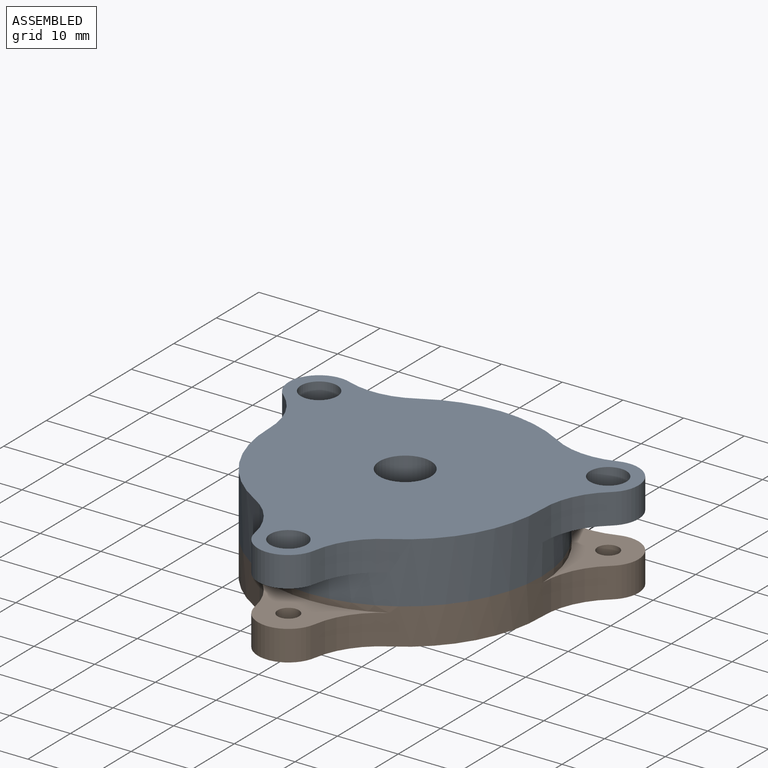
[diagram: assembled view]
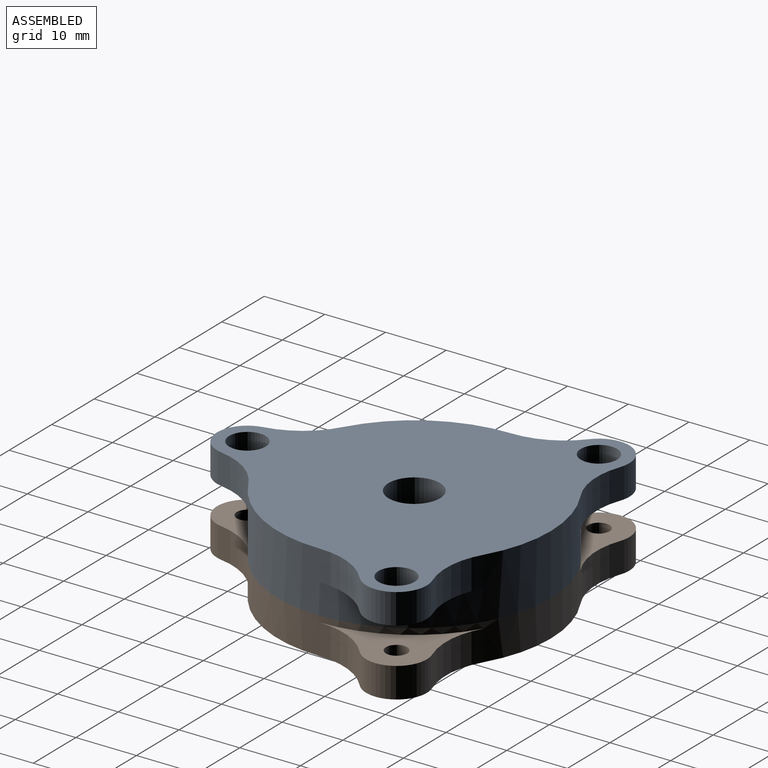
[diagram: assembled view, second angle]
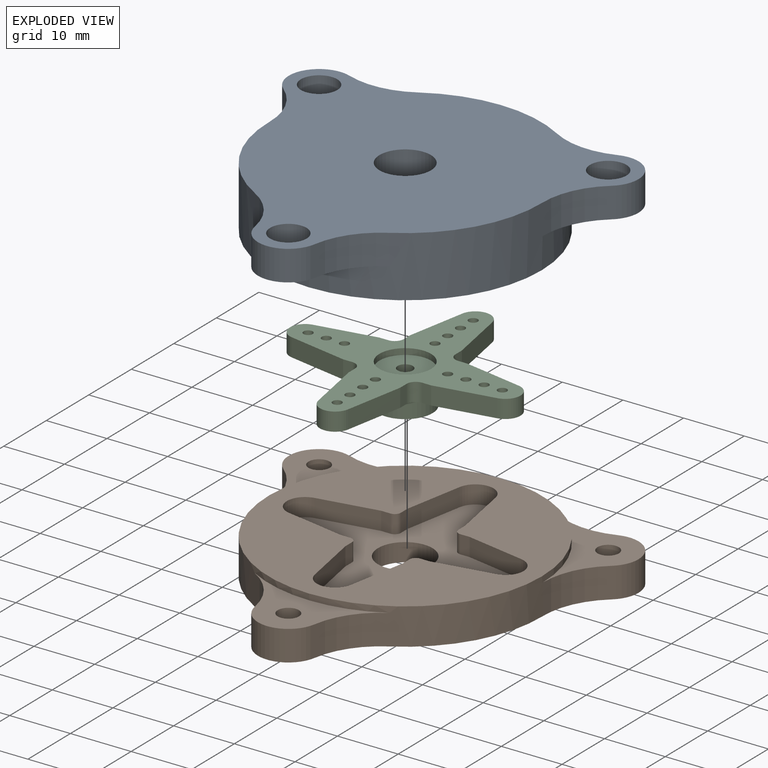
[diagram: exploded view]
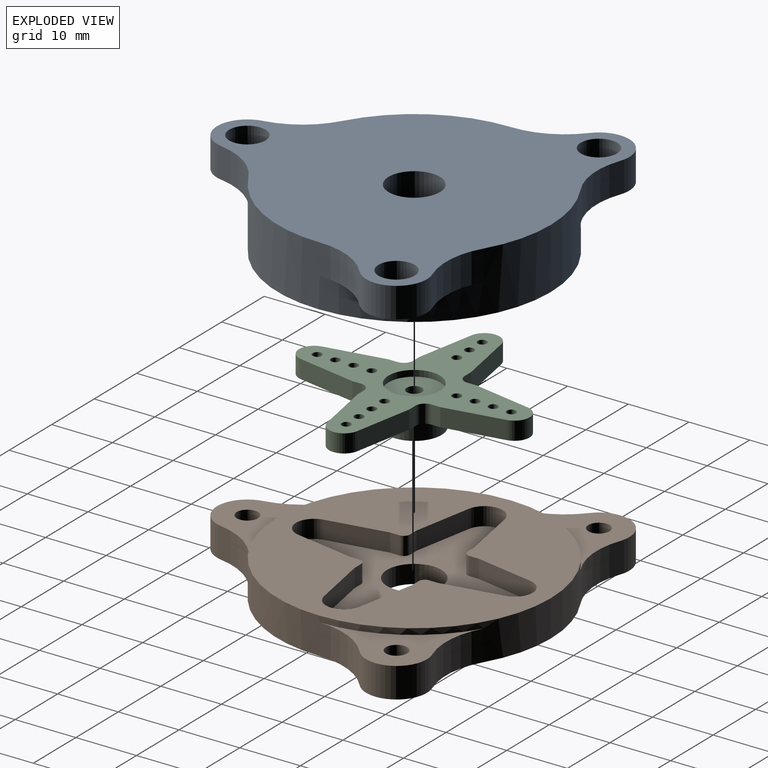
[diagram: exploded view, second angle]
ASSEMBLY  parts=3 mates=2
PART A: 25 faces, bbox 57.6x55x10 mm
  f0: cylinder r=1.75mm len=3.5mm, axis (0,0,-1), area 22mm2, adj f18,f22
  f1: cylinder r=1.75mm len=3.5mm, axis (0,0,-1), area 22mm2, adj f7,f24
  f2: cylinder r=1.75mm len=3.5mm, axis (0,0,-1), area 22mm2, adj f6,f20
  f3: cylinder r=4.25mm len=10mm, axis (0,0,-1), area 267mm2, adj f5,f17
  f4: cylinder r=22.5mm len=45mm, axis (0,0,-1), area 1065.9mm2, adj f5,f6,f7,f8,f10,f11,f13,f14
  f5: plane 45x45mm, normal (0,0,-1), area 1533.7mm2, adj f3,f4
  f6: plane 19.21x17.41mm, normal (0,0,-1), area 100.5mm2, adj f2,f4,f14,f15,f16
  f7: plane 19.21x17.41mm, normal (0,0,-1), area 100.5mm2, adj f1,f4,f8,f9,f10
  f8: cylinder r=12.5mm len=10.67mm, axis (0,0,-1), area 55.4mm2, adj f4,f7,f9,f17
  f9: cylinder r=5mm len=8.85mm, axis (0,0,-1), area 70.1mm2, adj f7,f8,f10,f17
  f10: cylinder r=12.5mm len=9.72mm, axis (0,0,-1), area 55.4mm2, adj f4,f7,f9,f17
  f11: cylinder r=12.5mm len=8.77mm, axis (0,0,-1), area 55.4mm2, adj f4,f12,f17,f18
  f12: cylinder r=5mm len=9.86mm, axis (0,0,-1), area 70.1mm2, adj f11,f13,f17,f18
  f13: cylinder r=12.5mm len=8.77mm, axis (0,0,-1), area 55.4mm2, adj f4,f12,f17,f18
  f14: cylinder r=12.5mm len=9.72mm, axis (0,0,-1), area 55.4mm2, adj f4,f6,f15,f17
  f15: cylinder r=5mm len=8.85mm, axis (0,0,-1), area 70.1mm2, adj f6,f14,f16,f17
  f16: cylinder r=12.5mm len=10.67mm, axis (0,0,-1), area 55.4mm2, adj f4,f6,f15,f17
  f17: plane 57.63x55mm, normal (0,0,1), area 1779.1mm2, adj f3,f4,f8,f9,f10,f11,f12,f13
  f18: plane 22.18x12.92mm, normal (0,0,-1), area 100.5mm2, adj f0,f4,f11,f12,f13
  f19: cylinder r=3mm len=6mm, axis (0,0,1), area 56.5mm2, adj f17,f20
  f20: plane 6x6mm, normal (0,0,1), area 18.7mm2, adj f2,f19
  f21: cylinder r=3mm len=6mm, axis (0,0,1), area 56.5mm2, adj f17,f22
  f22: plane 6x6mm, normal (0,0,1), area 18.7mm2, adj f0,f21
  f23: cylinder r=3mm len=6mm, axis (0,0,1), area 56.5mm2, adj f17,f24
  f24: plane 6x6mm, normal (0,0,1), area 18.7mm2, adj f1,f23
PART B: 65 faces, bbox 57.6x55x6 mm
  f0: cylinder r=1.75mm len=3.5mm, axis (0,0,-1), area 22mm2, adj f11,f40
  f1: cylinder r=1.75mm len=3.5mm, axis (0,0,-1), area 22mm2, adj f15,f33
  f2: cylinder r=1.75mm len=3.5mm, axis (0,0,-1), area 22mm2, adj f19,f26
  f3: cylinder r=22.5mm len=45mm, axis (0,0,-1), area 500.4mm2, adj f4,f5,f8,f10,f11,f12,f13,f15
  f4: plane 45x45mm, normal (0,0,1), area 1058.8mm2, adj f3,f41,f42,f43,f44,f45,f46,f47
  f5: plane 57.63x55mm, normal (0,0,-1), area 1763.5mm2, adj f3,f7,f8,f9,f10,f12,f13,f14
  f6: plane 39x39mm, normal (0,0,1), area 468.1mm2, adj f7,f41,f42,f43,f44,f45,f46,f47
  f7: cylinder r=4.5mm len=9mm, axis (0,0,-1), area 84.8mm2, adj f5,f6
  f8: cylinder r=12.5mm len=8.77mm, axis (0,0,-1), area 55.4mm2, adj f3,f5,f9,f11
  f9: cylinder r=5mm len=9.86mm, axis (0,0,-1), area 70.1mm2, adj f5,f8,f10,f11
  f10: cylinder r=12.5mm len=8.77mm, axis (0,0,-1), area 55.4mm2, adj f3,f5,f9,f11
  f11: plane 22.18x12.92mm, normal (0,0,1), area 100.5mm2, adj f0,f3,f8,f9,f10
  f12: cylinder r=12.5mm len=9.72mm, axis (0,0,-1), area 55.4mm2, adj f3,f5,f14,f15
  f13: cylinder r=12.5mm len=10.67mm, axis (0,0,-1), area 55.4mm2, adj f3,f5,f14,f15
  f14: cylinder r=5mm len=8.85mm, axis (0,0,-1), area 70.1mm2, adj f5,f12,f13,f15
  f15: plane 19.21x17.41mm, normal (0,0,1), area 100.5mm2, adj f1,f3,f12,f13,f14
  f16: cylinder r=12.5mm len=9.72mm, axis (0,0,-1), area 55.4mm2, adj f3,f5,f17,f19
  f17: cylinder r=5mm len=8.85mm, axis (0,0,-1), area 70.1mm2, adj f5,f16,f18,f19
  f18: cylinder r=12.5mm len=10.67mm, axis (0,0,-1), area 55.4mm2, adj f3,f5,f17,f19
  f19: plane 19.21x17.41mm, normal (0,0,1), area 100.5mm2, adj f2,f3,f16,f17,f18
  f20: plane 3x3mm, normal (-0.87,0.5,0), area 10.4mm2, adj f5,f21,f25,f26
  f21: plane 3.46x3mm, normal (0,1,0), area 10.4mm2, adj f5,f20,f22,f26
  f22: plane 3x3mm, normal (0.87,0.5,0), area 10.4mm2, adj f5,f21,f23,f26
  f23: plane 3x3mm, normal (0.87,-0.5,0), area 10.4mm2, adj f5,f22,f24,f26
  f24: plane 3.46x3mm, normal (0,-1,0), area 10.4mm2, adj f5,f23,f25,f26
  f25: plane 3x3mm, normal (-0.87,-0.5,0), area 10.4mm2, adj f5,f20,f24,f26
  f26: plane 6.93x6mm, normal (0,0,-1), area 21.6mm2, adj f2,f20,f21,f22,f23,f24,f25
  f27: plane 3x3mm, normal (-0.87,0.5,0), area 10.4mm2, adj f5,f28,f32,f33
  f28: plane 3.46x3mm, normal (0,1,0), area 10.4mm2, adj f5,f27,f29,f33
  f29: plane 3x3mm, normal (0.87,0.5,0), area 10.4mm2, adj f5,f28,f30,f33
  f30: plane 3x3mm, normal (0.87,-0.5,0), area 10.4mm2, adj f5,f29,f31,f33
  f31: plane 3.46x3mm, normal (0,-1,0), area 10.4mm2, adj f5,f30,f32,f33
  f32: plane 3x3mm, normal (-0.87,-0.5,0), area 10.4mm2, adj f5,f27,f31,f33
  f33: plane 6.93x6mm, normal (0,0,-1), area 21.6mm2, adj f1,f27,f28,f29,f30,f31,f32
  f34: plane 3x3mm, normal (0.87,-0.5,0), area 10.4mm2, adj f5,f35,f39,f40
  f35: plane 3.46x3mm, normal (0,-1,0), area 10.4mm2, adj f5,f34,f36,f40
  f36: plane 3x3mm, normal (-0.87,-0.5,0), area 10.4mm2, adj f5,f35,f37,f40
  f37: plane 3x3mm, normal (-0.87,0.5,0), area 10.4mm2, adj f5,f36,f38,f40
  f38: plane 3.46x3mm, normal (0,1,0), area 10.4mm2, adj f5,f37,f39,f40
  f39: plane 3x3mm, normal (0.87,0.5,0), area 10.4mm2, adj f5,f34,f38,f40
  f40: plane 6.93x6mm, normal (0,0,-1), area 21.6mm2, adj f0,f34,f35,f36,f37,f38,f39
  f41: plane 9.75x3mm, normal (-0.98,-0.18,0), area 29.7mm2, adj f4,f6,f42,f64
  f42: cylinder r=3mm len=5.9mm, axis (0,0,1), area 25mm2, adj f4,f6,f41,f43
  f43: plane 9.75x3mm, normal (0.98,-0.18,0), area 29.7mm2, adj f4,f6,f42,f44
  f44: plane 3x1.55mm, normal (1,0,0), area 4.6mm2, adj f4,f6,f43,f45
  f45: cylinder r=1mm len=3mm, axis (0,0,1), area 4.7mm2, adj f4,f6,f44,f46
  f46: plane 3x1.55mm, normal (0,-1,0), area 4.6mm2, adj f4,f6,f45,f47
  f47: plane 9.75x3mm, normal (0.18,-0.98,0), area 29.7mm2, adj f4,f6,f46,f48
  f48: cylinder r=3mm len=5.9mm, axis (0,0,1), area 25mm2, adj f4,f6,f47,f49
  f49: plane 9.75x3mm, normal (0.18,0.98,0), area 29.7mm2, adj f4,f6,f48,f50
  f50: plane 3x1.55mm, normal (0,1,0), area 4.6mm2, adj f4,f6,f49,f51
  f51: cylinder r=1mm len=3mm, axis (0,0,1), area 4.7mm2, adj f4,f6,f50,f52
  f52: plane 3x1.55mm, normal (1,0,0), area 4.6mm2, adj f4,f6,f51,f53
  f53: plane 9.75x3mm, normal (0.98,0.18,0), area 29.7mm2, adj f4,f6,f52,f54
  f54: cylinder r=3mm len=5.9mm, axis (0,0,1), area 25mm2, adj f4,f6,f53,f55
  f55: plane 9.75x3mm, normal (-0.98,0.18,0), area 29.7mm2, adj f4,f6,f54,f56
  f56: plane 3x1.55mm, normal (-1,0,0), area 4.6mm2, adj f4,f6,f55,f57
  f57: cylinder r=1mm len=3mm, axis (0,0,1), area 4.7mm2, adj f4,f6,f56,f58
  f58: plane 3x1.55mm, normal (0,1,0), area 4.6mm2, adj f4,f6,f57,f59
  f59: plane 9.75x3mm, normal (-0.18,0.98,0), area 29.7mm2, adj f4,f6,f58,f60
  f60: cylinder r=3mm len=5.9mm, axis (0,0,1), area 25mm2, adj f4,f6,f59,f61
  f61: plane 9.75x3mm, normal (-0.18,-0.98,0), area 29.7mm2, adj f4,f6,f60,f62
  f62: plane 3x1.55mm, normal (0,-1,0), area 4.6mm2, adj f4,f6,f61,f63
  f63: cylinder r=1mm len=3mm, axis (0,0,1), area 4.7mm2, adj f4,f6,f62,f64
  f64: plane 3x1.55mm, normal (-1,0,0), area 4.6mm2, adj f4,f6,f41,f63
PART C: 48 faces, bbox 38x38x6.5 mm
  f0: cylinder r=1.25mm len=2.5mm, axis (0,0,-1), area 15.7mm2, adj f1,f47
  f1: plane 5.8x5.8mm, normal (0,0,-1), area 21.5mm2, adj f0,f43
  f2: plane 9.7x3mm, normal (0.98,0.18,0), area 29.6mm2, adj f3,f21,f22,f23
  f3: cylinder r=2.5mm len=4.92mm, axis (0,0,-1), area 20.8mm2, adj f2,f4,f22,f23
  f4: plane 9.7x3mm, normal (-0.98,0.18,0), area 29.6mm2, adj f3,f5,f22,f23
  f5: plane 3x1.5mm, normal (-1,0,0), area 4.5mm2, adj f4,f22,f23,f24
  f6: plane 3x1.5mm, normal (0,1,0), area 4.5mm2, adj f7,f22,f23,f24
  f7: plane 9.7x3mm, normal (-0.18,0.98,0), area 29.6mm2, adj f6,f8,f22,f23
  f8: cylinder r=2.5mm len=4.92mm, axis (0,0,-1), area 20.8mm2, adj f7,f9,f22,f23
  f9: plane 9.7x3mm, normal (-0.18,-0.98,0), area 29.6mm2, adj f8,f10,f22,f23
  f10: plane 3x1.5mm, normal (0,-1,0), area 4.5mm2, adj f9,f22,f23,f25
  f11: plane 3x1.5mm, normal (-1,0,0), area 4.5mm2, adj f12,f22,f23,f25
  f12: plane 9.7x3mm, normal (-0.98,-0.18,0), area 29.6mm2, adj f11,f13,f22,f23
  f13: cylinder r=2.5mm len=4.92mm, axis (0,0,-1), area 20.8mm2, adj f12,f14,f22,f23
  f14: plane 9.7x3mm, normal (0.98,-0.18,0), area 29.6mm2, adj f13,f15,f22,f23
  f15: plane 3x1.5mm, normal (1,0,0), area 4.5mm2, adj f14,f22,f23,f26
  f16: plane 3x1.5mm, normal (0,-1,0), area 4.5mm2, adj f17,f22,f23,f26
  f17: plane 9.7x3mm, normal (0.18,-0.98,0), area 29.6mm2, adj f16,f18,f22,f23
  f18: cylinder r=2.5mm len=4.92mm, axis (0,0,-1), area 20.8mm2, adj f17,f19,f22,f23
  f19: plane 9.7x3mm, normal (0.18,0.98,0), area 29.6mm2, adj f18,f20,f22,f23
  f20: plane 3x1.5mm, normal (0,1,0), area 4.5mm2, adj f19,f22,f23,f27
  f21: plane 3x1.5mm, normal (1,0,0), area 4.5mm2, adj f2,f22,f23,f27
  f22: plane 38x38mm, normal (0,0,1), area 383.6mm2, adj f2,f3,f4,f5,f6,f7,f8,f9
  f23: plane 38x38mm, normal (0,0,-1), area 376.7mm2, adj f2,f3,f4,f5,f6,f7,f8,f9
  f24: cylinder r=1.5mm len=3mm, axis (0,0,1), area 7.1mm2, adj f5,f6,f22,f23
  f25: cylinder r=1.5mm len=3mm, axis (0,0,-1), area 7.1mm2, adj f10,f11,f22,f23
  f26: cylinder r=1.5mm len=3mm, axis (0,0,1), area 7.1mm2, adj f15,f16,f22,f23
  f27: cylinder r=1.5mm len=3mm, axis (0,0,-1), area 7.1mm2, adj f20,f21,f22,f23
  f28: cylinder r=0.75mm len=3mm, axis (0,0,1), area 14.1mm2, adj f22,f23
  f29: cylinder r=0.75mm len=3mm, axis (0,0,1), area 14.1mm2, adj f22,f23
  f30: cylinder r=0.75mm len=3mm, axis (0,0,1), area 14.1mm2, adj f22,f23
  f31: cylinder r=0.75mm len=3mm, axis (0,0,1), area 14.1mm2, adj f22,f23
  f32: cylinder r=0.75mm len=3mm, axis (0,0,1), area 14.1mm2, adj f22,f23
  f33: cylinder r=0.75mm len=3mm, axis (0,0,1), area 14.1mm2, adj f22,f23
  f34: cylinder r=0.75mm len=3mm, axis (0,0,1), area 14.1mm2, adj f22,f23
  f35: cylinder r=0.75mm len=3mm, axis (0,0,1), area 14.1mm2, adj f22,f23
  f36: cylinder r=0.75mm len=3mm, axis (0,0,1), area 14.1mm2, adj f22,f23
  f37: cylinder r=0.75mm len=3mm, axis (0,0,1), area 14.1mm2, adj f22,f23
  f38: cylinder r=0.75mm len=3mm, axis (0,0,1), area 14.1mm2, adj f22,f23
  f39: cylinder r=0.75mm len=3mm, axis (0,0,1), area 14.1mm2, adj f22,f23
  f40: cylinder r=0.75mm len=3mm, axis (0,0,1), area 14.1mm2, adj f22,f23
  f41: cylinder r=0.75mm len=3mm, axis (0,0,1), area 14.1mm2, adj f22,f23
  f42: cylinder r=0.75mm len=3mm, axis (0,0,1), area 14.1mm2, adj f22,f23
  f43: cylinder r=2.9mm len=5.8mm, axis (0,0,1), area 63.8mm2, adj f1,f45
  f44: cylinder r=4.5mm len=9mm, axis (0,0,1), area 99mm2, adj f23,f45
  f45: plane 9x9mm, normal (0,0,-1), area 37.2mm2, adj f43,f44
  f46: cylinder r=4.25mm len=8.5mm, axis (0,0,1), area 26.7mm2, adj f22,f47
  f47: plane 8.5x8.5mm, normal (0,0,1), area 51.8mm2, adj f0,f46
PLACE A t=(20.35,4.01,-8.61)mm
PLACE B t=(20.35,4.01,-14.61)mm fixed
PLACE C t=(20.35,4.01,-11.61)mm
MATE fastened C.f44 <-> B.f7  axis (0,0,1) through (20.35,4.01,-11.61)mm
MATE slider A.f4 <-> B.f3  axis (0,0,-1) through (20.35,4.01,-8.61)mm
